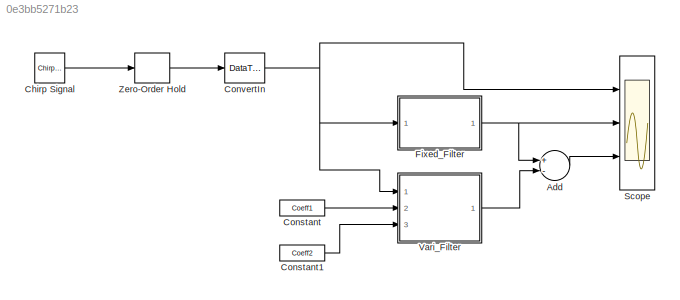
MODEL slx_0e3bb5271b23
KIND model
CONFIG AbsTol = auto
CONFIG FixedStep = auto
CONFIG MaxStep = auto
CONFIG MinStep = auto
CONFIG PreLoadFcn = Hd = sla_iir_sharing_fdesign\nCoeff1 = Hd.sosMatrix(1,:)\nCoeff2 = Hd.sosMatrix(2,:)\n
CONFIG RelTol = 1e-3
CONFIG SampleTimeConstraint = Unconstrained
CONFIG Solver = FixedStepDiscrete
CONFIG SolverMode = SingleTasking
CONFIG SolverName = FixedStepDiscrete
CONFIG StartTime = 0.0
CONFIG StopTime = 10.0
BLOCK [Sum] Add
  InputSameDT = off
  Inputs = +-
  OutDataTypeStr = Inherit: Inherit via internal rule
  Ports = [2, 1]
  SaturateOnIntegerOverflow = off
BLOCK [Reference] Chirp Signal  REF=simulink/Sources/Chirp Signal
  Ports = [0, 1]
  SourceBlock = simulink/Sources/Chirp Signal
  SourceType = chirp
BLOCK [Constant] Constant
  OutDataTypeStr = fixdt(1,16,14)
  SampleTime = -1
  Value = Coeff1
BLOCK [Constant] Constant1
  OutDataTypeStr = fixdt(1,16,14)
  SampleTime = -1
  Value = Coeff2
BLOCK [DataTypeConversion] ConvertIn
  OutDataTypeStr = fixdt(1,24,20)
  RndMeth = Nearest
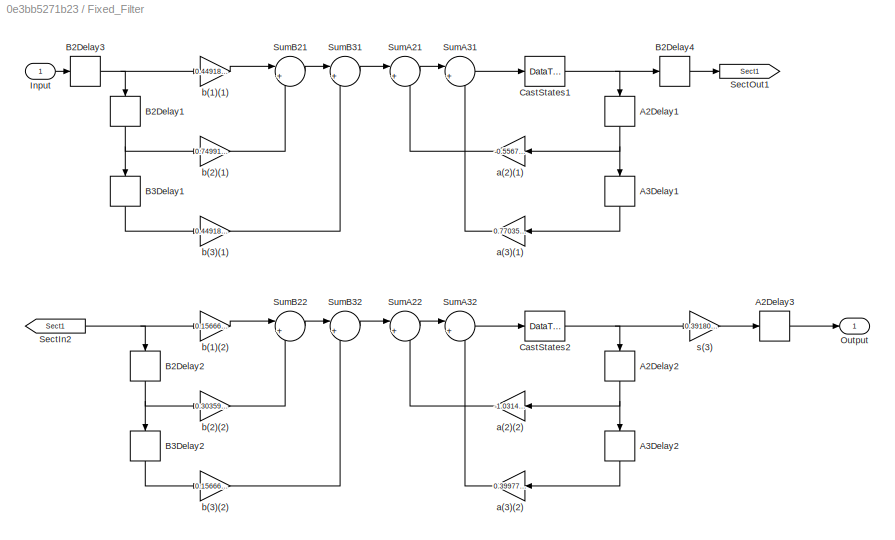
BLOCK [SubSystem] Fixed_Filter
  ErrorFcn = dspFilterRealizedInBasicElemsAlgLoopErrFcnCallback
  Ports = [1, 1]
  RequestExecContextInheritance = off
  Tag = FilterWizardSubSystem
  UserDataPersistent = on
  Variant = off
BLOCK [Delay] Fixed_Filter/A2Delay1
  DelayLength = 1
  InitialCondition = 0
  InputPortMap = u0
  Ports = [1, 1]
BLOCK [Delay] Fixed_Filter/A2Delay2
  DelayLength = 1
  InitialCondition = 0
  InputPortMap = u0
  Ports = [1, 1]
BLOCK [Delay] Fixed_Filter/A2Delay3
  DelayLength = 1
  InitialCondition = 0
  InputPortMap = u0
  Ports = [1, 1]
BLOCK [Delay] Fixed_Filter/A3Delay1
  DelayLength = 1
  InitialCondition = 0
  InputPortMap = u0
  Ports = [1, 1]
BLOCK [Delay] Fixed_Filter/A3Delay2
  DelayLength = 1
  InitialCondition = 0
  InputPortMap = u0
  Ports = [1, 1]
BLOCK [Delay] Fixed_Filter/B2Delay1
  DelayLength = 1
  InitialCondition = 0
  InputPortMap = u0
  Ports = [1, 1]
BLOCK [Delay] Fixed_Filter/B2Delay2
  DelayLength = 1
  InitialCondition = 0
  InputPortMap = u0
  Ports = [1, 1]
BLOCK [Delay] Fixed_Filter/B2Delay3
  DelayLength = 1
  InitialCondition = 0
  InputPortMap = u0
  Ports = [1, 1]
BLOCK [Delay] Fixed_Filter/B2Delay4
  DelayLength = 1
  InitialCondition = 0
  InputPortMap = u0
  Ports = [1, 1]
BLOCK [Delay] Fixed_Filter/B3Delay1
  DelayLength = 1
  InitialCondition = 0
  InputPortMap = u0
  Ports = [1, 1]
BLOCK [Delay] Fixed_Filter/B3Delay2
  DelayLength = 1
  InitialCondition = 0
  InputPortMap = u0
  Ports = [1, 1]
BLOCK [DataTypeConversion] Fixed_Filter/CastStates1
  OutDataTypeStr = fixdt(1,24,20)
  RndMeth = Convergent
  SaturateOnIntegerOverflow = off
BLOCK [DataTypeConversion] Fixed_Filter/CastStates2
  OutDataTypeStr = fixdt(1,24,20)
  RndMeth = Convergent
  SaturateOnIntegerOverflow = off
BLOCK [Inport] Fixed_Filter/Input
  IconDisplay = Port number
BLOCK [Outport] Fixed_Filter/Output
  IconDisplay = Port number
BLOCK [From] Fixed_Filter/SectIn2
  GotoTag = Sect1
BLOCK [Goto] Fixed_Filter/SectOut1
  GotoTag = Sect1
BLOCK [Sum] Fixed_Filter/SumA21
  AccumDataTypeStr = fixdt(1,40,34)
  IconShape = round
  InputSameDT = off
  Inputs = |+-
  OutDataTypeStr = fixdt(1,40,34)
  Ports = [2, 1]
  RndMeth = Convergent
  SaturateOnIntegerOverflow = off
BLOCK [Sum] Fixed_Filter/SumA22
  AccumDataTypeStr = fixdt(1,40,34)
  IconShape = round
  InputSameDT = off
  Inputs = |+-
  OutDataTypeStr = fixdt(1,40,34)
  Ports = [2, 1]
  RndMeth = Convergent
  SaturateOnIntegerOverflow = off
BLOCK [Sum] Fixed_Filter/SumA31
  AccumDataTypeStr = fixdt(1,40,34)
  IconShape = round
  InputSameDT = off
  Inputs = |+-
  OutDataTypeStr = fixdt(1,40,34)
  Ports = [2, 1]
  RndMeth = Convergent
  SaturateOnIntegerOverflow = off
BLOCK [Sum] Fixed_Filter/SumA32
  AccumDataTypeStr = fixdt(1,40,34)
  IconShape = round
  InputSameDT = off
  Inputs = |+-
  OutDataTypeStr = fixdt(1,40,34)
  Ports = [2, 1]
  RndMeth = Convergent
  SaturateOnIntegerOverflow = off
BLOCK [Sum] Fixed_Filter/SumB21
  AccumDataTypeStr = fixdt(1,40,35)
  IconShape = round
  InputSameDT = off
  Inputs = |++
  OutDataTypeStr = fixdt(1,40,35)
  Ports = [2, 1]
  RndMeth = Convergent
  SaturateOnIntegerOverflow = off
BLOCK [Sum] Fixed_Filter/SumB22
  AccumDataTypeStr = fixdt(1,40,35)
  IconShape = round
  InputSameDT = off
  Inputs = |++
  OutDataTypeStr = fixdt(1,40,35)
  Ports = [2, 1]
  RndMeth = Convergent
  SaturateOnIntegerOverflow = off
BLOCK [Sum] Fixed_Filter/SumB31
  AccumDataTypeStr = fixdt(1,40,35)
  IconShape = round
  InputSameDT = off
  Inputs = |++
  OutDataTypeStr = fixdt(1,40,35)
  Ports = [2, 1]
  RndMeth = Convergent
  SaturateOnIntegerOverflow = off
BLOCK [Sum] Fixed_Filter/SumB32
  AccumDataTypeStr = fixdt(1,40,35)
  IconShape = round
  InputSameDT = off
  Inputs = |++
  OutDataTypeStr = fixdt(1,40,35)
  Ports = [2, 1]
  RndMeth = Convergent
  SaturateOnIntegerOverflow = off
BLOCK [Gain] Fixed_Filter/a(2)(1)
  Gain = -0.55675755500760449
  OutDataTypeStr = fixdt(1,40,36)
  ParamDataTypeStr = fixdt(1,16,14)
  RndMeth = Nearest
  SaturateOnIntegerOverflow = off
BLOCK [Gain] Fixed_Filter/a(2)(2)
  Gain = -1.0314254280664468
  OutDataTypeStr = fixdt(1,40,36)
  ParamDataTypeStr = fixdt(1,16,14)
  RndMeth = Nearest
  SaturateOnIntegerOverflow = off
BLOCK [Gain] Fixed_Filter/a(3)(1)
  Gain = 0.77035837673636864
  OutDataTypeStr = fixdt(1,40,36)
  ParamDataTypeStr = fixdt(1,16,14)
  RndMeth = Nearest
  SaturateOnIntegerOverflow = off
BLOCK [Gain] Fixed_Filter/a(3)(2)
  Gain = 0.39977040417856735
  OutDataTypeStr = fixdt(1,40,36)
  ParamDataTypeStr = fixdt(1,16,14)
  RndMeth = Nearest
  SaturateOnIntegerOverflow = off
BLOCK [Gain] Fixed_Filter/b(1)(1)
  Gain = 0.44918421058976526
  OutDataTypeStr = fixdt(1,40,36)
  ParamDataTypeStr = fixdt(1,16,14)
  RndMeth = Nearest
  SaturateOnIntegerOverflow = off
BLOCK [Gain] Fixed_Filter/b(1)(2)
  Gain = 0.15666052151553389
  OutDataTypeStr = fixdt(1,40,36)
  ParamDataTypeStr = fixdt(1,16,14)
  RndMeth = Nearest
  SaturateOnIntegerOverflow = off
BLOCK [Gain] Fixed_Filter/b(2)(1)
  Gain = 0.74991329716402144
  OutDataTypeStr = fixdt(1,40,36)
  ParamDataTypeStr = fixdt(1,16,14)
  RndMeth = Nearest
  SaturateOnIntegerOverflow = off
BLOCK [Gain] Fixed_Filter/b(2)(2)
  Gain = 0.3035942618990965
  OutDataTypeStr = fixdt(1,40,36)
  ParamDataTypeStr = fixdt(1,16,14)
  RndMeth = Nearest
  SaturateOnIntegerOverflow = off
BLOCK [Gain] Fixed_Filter/b(3)(1)
  Gain = 0.44918421058976538
  OutDataTypeStr = fixdt(1,40,36)
  ParamDataTypeStr = fixdt(1,16,14)
  RndMeth = Nearest
  SaturateOnIntegerOverflow = off
BLOCK [Gain] Fixed_Filter/b(3)(2)
  Gain = 0.15666052151553386
  OutDataTypeStr = fixdt(1,40,36)
  ParamDataTypeStr = fixdt(1,16,14)
  RndMeth = Nearest
  SaturateOnIntegerOverflow = off
BLOCK [Gain] Fixed_Filter/s(3)
  Gain = 0.39180829500774744
  OutDataTypeStr = fixdt(1,18,12)
  ParamDataTypeStr = fixdt(1,16,14)
  RndMeth = Convergent
  SaturateOnIntegerOverflow = off
BLOCK [Scope] Scope
  NumInputPorts = 3
  Ports = [3]
  ScopeSpecificationString = Simulink.scopes.TimeScopeBlockCfg('CurrentConfiguration', extmgr.ConfigurationSet(extmgr.Configuration('Core','General UI',true),extmgr.Configuration('Core','Source UI',true),extmgr.Configuration('Sources','WiredSimulink',true,'DataLoggingSaveFormat','StructureWithTime','DataLoggingDecimation','1','DataLoggingDecimateData',true),extmgr.Configuration('Visuals','Time Domain',true,'SerializedDisplays...<+3034ch>
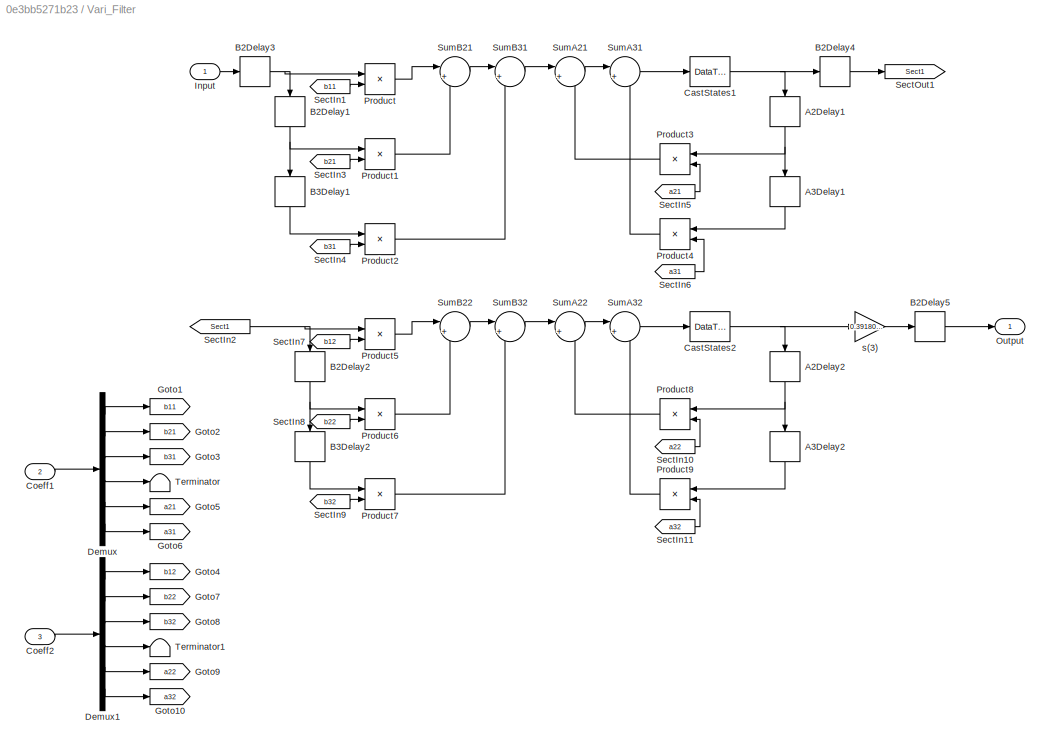
BLOCK [SubSystem] Vari_Filter
  ErrorFcn = dspFilterRealizedInBasicElemsAlgLoopErrFcnCallback
  Ports = [3, 1]
  RequestExecContextInheritance = off
  Tag = FilterWizardSubSystem
  UserDataPersistent = on
  Variant = off
BLOCK [Delay] Vari_Filter/A2Delay1
  DelayLength = 1
  InitialCondition = 0
  InputPortMap = u0
  Ports = [1, 1]
BLOCK [Delay] Vari_Filter/A2Delay2
  DelayLength = 1
  InitialCondition = 0
  InputPortMap = u0
  Ports = [1, 1]
BLOCK [Delay] Vari_Filter/A3Delay1
  DelayLength = 1
  InitialCondition = 0
  InputPortMap = u0
  Ports = [1, 1]
BLOCK [Delay] Vari_Filter/A3Delay2
  DelayLength = 1
  InitialCondition = 0
  InputPortMap = u0
  Ports = [1, 1]
BLOCK [Delay] Vari_Filter/B2Delay1
  DelayLength = 1
  InitialCondition = 0
  InputPortMap = u0
  Ports = [1, 1]
BLOCK [Delay] Vari_Filter/B2Delay2
  DelayLength = 1
  InitialCondition = 0
  InputPortMap = u0
  Ports = [1, 1]
BLOCK [Delay] Vari_Filter/B2Delay3
  DelayLength = 1
  InitialCondition = 0
  InputPortMap = u0
  Ports = [1, 1]
BLOCK [Delay] Vari_Filter/B2Delay4
  DelayLength = 1
  InitialCondition = 0
  InputPortMap = u0
  Ports = [1, 1]
BLOCK [Delay] Vari_Filter/B2Delay5
  DelayLength = 1
  InitialCondition = 0
  InputPortMap = u0
  Ports = [1, 1]
BLOCK [Delay] Vari_Filter/B3Delay1
  DelayLength = 1
  InitialCondition = 0
  InputPortMap = u0
  Ports = [1, 1]
BLOCK [Delay] Vari_Filter/B3Delay2
  DelayLength = 1
  InitialCondition = 0
  InputPortMap = u0
  Ports = [1, 1]
BLOCK [DataTypeConversion] Vari_Filter/CastStates1
  OutDataTypeStr = fixdt(1,24,20)
  RndMeth = Convergent
  SaturateOnIntegerOverflow = off
BLOCK [DataTypeConversion] Vari_Filter/CastStates2
  OutDataTypeStr = fixdt(1,24,20)
  RndMeth = Convergent
  SaturateOnIntegerOverflow = off
BLOCK [Inport] Vari_Filter/Coeff1
  IconDisplay = Port number
  Port = 2
BLOCK [Inport] Vari_Filter/Coeff2
  IconDisplay = Port number
  Port = 3
BLOCK [Demux] Vari_Filter/Demux
  DisplayOption = bar
  Outputs = 6
  Ports = [1, 6]
BLOCK [Demux] Vari_Filter/Demux1
  DisplayOption = bar
  Outputs = 6
  Ports = [1, 6]
BLOCK [Goto] Vari_Filter/Goto1
  GotoTag = b11
BLOCK [Goto] Vari_Filter/Goto10
  GotoTag = a32
BLOCK [Goto] Vari_Filter/Goto2
  GotoTag = b21
BLOCK [Goto] Vari_Filter/Goto3
  GotoTag = b31
BLOCK [Goto] Vari_Filter/Goto4
  GotoTag = b12
BLOCK [Goto] Vari_Filter/Goto5
  GotoTag = a21
BLOCK [Goto] Vari_Filter/Goto6
  GotoTag = a31
BLOCK [Goto] Vari_Filter/Goto7
  GotoTag = b22
BLOCK [Goto] Vari_Filter/Goto8
  GotoTag = b32
BLOCK [Goto] Vari_Filter/Goto9
  GotoTag = a22
BLOCK [Inport] Vari_Filter/Input
  IconDisplay = Port number
BLOCK [Outport] Vari_Filter/Output
  IconDisplay = Port number
BLOCK [Product] Vari_Filter/Product
  InputSameDT = off
  OutDataTypeStr = fixdt(1,40,36)
  Ports = [2, 1]
  RndMeth = Nearest
  SaturateOnIntegerOverflow = off
BLOCK [Product] Vari_Filter/Product1
  InputSameDT = off
  OutDataTypeStr = fixdt(1,40,36)
  Ports = [2, 1]
  RndMeth = Nearest
  SaturateOnIntegerOverflow = off
BLOCK [Product] Vari_Filter/Product2
  InputSameDT = off
  OutDataTypeStr = fixdt(1,40,36)
  Ports = [2, 1]
  RndMeth = Nearest
  SaturateOnIntegerOverflow = off
BLOCK [Product] Vari_Filter/Product3
  InputSameDT = off
  OutDataTypeStr = fixdt(1,40,36)
  Ports = [2, 1]
  RndMeth = Nearest
  SaturateOnIntegerOverflow = off
BLOCK [Product] Vari_Filter/Product4
  InputSameDT = off
  OutDataTypeStr = fixdt(1,40,36)
  Ports = [2, 1]
  RndMeth = Nearest
  SaturateOnIntegerOverflow = off
BLOCK [Product] Vari_Filter/Product5
  InputSameDT = off
  OutDataTypeStr = fixdt(1,40,36)
  Ports = [2, 1]
  RndMeth = Nearest
  SaturateOnIntegerOverflow = off
BLOCK [Product] Vari_Filter/Product6
  InputSameDT = off
  OutDataTypeStr = fixdt(1,40,36)
  Ports = [2, 1]
  RndMeth = Nearest
  SaturateOnIntegerOverflow = off
BLOCK [Product] Vari_Filter/Product7
  InputSameDT = off
  OutDataTypeStr = fixdt(1,40,36)
  Ports = [2, 1]
  RndMeth = Nearest
  SaturateOnIntegerOverflow = off
BLOCK [Product] Vari_Filter/Product8
  InputSameDT = off
  OutDataTypeStr = fixdt(1,40,36)
  Ports = [2, 1]
  RndMeth = Nearest
  SaturateOnIntegerOverflow = off
BLOCK [Product] Vari_Filter/Product9
  InputSameDT = off
  OutDataTypeStr = fixdt(1,40,36)
  Ports = [2, 1]
  RndMeth = Nearest
  SaturateOnIntegerOverflow = off
BLOCK [From] Vari_Filter/SectIn1
  GotoTag = b11
BLOCK [From] Vari_Filter/SectIn10
  GotoTag = a22
BLOCK [From] Vari_Filter/SectIn11
  GotoTag = a32
BLOCK [From] Vari_Filter/SectIn2
  GotoTag = Sect1
BLOCK [From] Vari_Filter/SectIn3
  GotoTag = b21
BLOCK [From] Vari_Filter/SectIn4
  GotoTag = b31
BLOCK [From] Vari_Filter/SectIn5
  GotoTag = a21
BLOCK [From] Vari_Filter/SectIn6
  GotoTag = a31
BLOCK [From] Vari_Filter/SectIn7
  GotoTag = b12
BLOCK [From] Vari_Filter/SectIn8
  GotoTag = b22
BLOCK [From] Vari_Filter/SectIn9
  GotoTag = b32
BLOCK [Goto] Vari_Filter/SectOut1
  GotoTag = Sect1
BLOCK [Sum] Vari_Filter/SumA21
  AccumDataTypeStr = fixdt(1,40,34)
  IconShape = round
  InputSameDT = off
  Inputs = |+-
  OutDataTypeStr = fixdt(1,40,34)
  Ports = [2, 1]
  RndMeth = Convergent
  SaturateOnIntegerOverflow = off
BLOCK [Sum] Vari_Filter/SumA22
  AccumDataTypeStr = fixdt(1,40,34)
  IconShape = round
  InputSameDT = off
  Inputs = |+-
  OutDataTypeStr = fixdt(1,40,34)
  Ports = [2, 1]
  RndMeth = Convergent
  SaturateOnIntegerOverflow = off
BLOCK [Sum] Vari_Filter/SumA31
  AccumDataTypeStr = fixdt(1,40,34)
  IconShape = round
  InputSameDT = off
  Inputs = |+-
  OutDataTypeStr = fixdt(1,40,34)
  Ports = [2, 1]
  RndMeth = Convergent
  SaturateOnIntegerOverflow = off
BLOCK [Sum] Vari_Filter/SumA32
  AccumDataTypeStr = fixdt(1,40,34)
  IconShape = round
  InputSameDT = off
  Inputs = |+-
  OutDataTypeStr = fixdt(1,40,34)
  Ports = [2, 1]
  RndMeth = Convergent
  SaturateOnIntegerOverflow = off
BLOCK [Sum] Vari_Filter/SumB21
  AccumDataTypeStr = fixdt(1,40,35)
  IconShape = round
  InputSameDT = off
  Inputs = |++
  OutDataTypeStr = fixdt(1,40,35)
  Ports = [2, 1]
  RndMeth = Convergent
  SaturateOnIntegerOverflow = off
BLOCK [Sum] Vari_Filter/SumB22
  AccumDataTypeStr = fixdt(1,40,35)
  IconShape = round
  InputSameDT = off
  Inputs = |++
  OutDataTypeStr = fixdt(1,40,35)
  Ports = [2, 1]
  RndMeth = Convergent
  SaturateOnIntegerOverflow = off
BLOCK [Sum] Vari_Filter/SumB31
  AccumDataTypeStr = fixdt(1,40,35)
  IconShape = round
  InputSameDT = off
  Inputs = |++
  OutDataTypeStr = fixdt(1,40,35)
  Ports = [2, 1]
  RndMeth = Convergent
  SaturateOnIntegerOverflow = off
BLOCK [Sum] Vari_Filter/SumB32
  AccumDataTypeStr = fixdt(1,40,35)
  IconShape = round
  InputSameDT = off
  Inputs = |++
  OutDataTypeStr = fixdt(1,40,35)
  Ports = [2, 1]
  RndMeth = Convergent
  SaturateOnIntegerOverflow = off
BLOCK [Terminator] Vari_Filter/Terminator
BLOCK [Terminator] Vari_Filter/Terminator1
BLOCK [Gain] Vari_Filter/s(3)
  Gain = 0.39180829500774744
  OutDataTypeStr = fixdt(1,18,12)
  ParamDataTypeStr = fixdt(1,16,14)
  RndMeth = Convergent
  SaturateOnIntegerOverflow = off
BLOCK [ZeroOrderHold] Zero-Order Hold
  SampleTime = 1/1000
LINE Add:1 -> Scope:3
LINE Chirp Signal:1 -> Zero-Order Hold:1
LINE Constant1:1 -> Vari_Filter:3
LINE Constant:1 -> Vari_Filter:2
NET ConvertIn:1 -> Fixed_Filter:1, Scope:1, Vari_Filter:1
NET Fixed_Filter/A2Delay1:1 -> Fixed_Filter/A3Delay1:1, Fixed_Filter/a(2)(1):1
NET Fixed_Filter/A2Delay2:1 -> Fixed_Filter/A3Delay2:1, Fixed_Filter/a(2)(2):1
LINE Fixed_Filter/A2Delay3:1 -> Fixed_Filter/Output:1
LINE Fixed_Filter/A3Delay1:1 -> Fixed_Filter/a(3)(1):1
LINE Fixed_Filter/A3Delay2:1 -> Fixed_Filter/a(3)(2):1
NET Fixed_Filter/B2Delay1:1 -> Fixed_Filter/B3Delay1:1, Fixed_Filter/b(2)(1):1
NET Fixed_Filter/B2Delay2:1 -> Fixed_Filter/B3Delay2:1, Fixed_Filter/b(2)(2):1
NET Fixed_Filter/B2Delay3:1 -> Fixed_Filter/B2Delay1:1, Fixed_Filter/b(1)(1):1
LINE Fixed_Filter/B2Delay4:1 -> Fixed_Filter/SectOut1:1
LINE Fixed_Filter/B3Delay1:1 -> Fixed_Filter/b(3)(1):1
LINE Fixed_Filter/B3Delay2:1 -> Fixed_Filter/b(3)(2):1
NET Fixed_Filter/CastStates1:1 -> Fixed_Filter/A2Delay1:1, Fixed_Filter/B2Delay4:1
NET Fixed_Filter/CastStates2:1 -> Fixed_Filter/A2Delay2:1, Fixed_Filter/s(3):1
LINE Fixed_Filter/Input:1 -> Fixed_Filter/B2Delay3:1
NET Fixed_Filter/SectIn2:1 -> Fixed_Filter/B2Delay2:1, Fixed_Filter/b(1)(2):1
LINE Fixed_Filter/SumA21:1 -> Fixed_Filter/SumA31:1
LINE Fixed_Filter/SumA22:1 -> Fixed_Filter/SumA32:1
LINE Fixed_Filter/SumA31:1 -> Fixed_Filter/CastStates1:1
LINE Fixed_Filter/SumA32:1 -> Fixed_Filter/CastStates2:1
LINE Fixed_Filter/SumB21:1 -> Fixed_Filter/SumB31:1
LINE Fixed_Filter/SumB22:1 -> Fixed_Filter/SumB32:1
LINE Fixed_Filter/SumB31:1 -> Fixed_Filter/SumA21:1
LINE Fixed_Filter/SumB32:1 -> Fixed_Filter/SumA22:1
LINE Fixed_Filter/a(2)(1):1 -> Fixed_Filter/SumA21:2
LINE Fixed_Filter/a(2)(2):1 -> Fixed_Filter/SumA22:2
LINE Fixed_Filter/a(3)(1):1 -> Fixed_Filter/SumA31:2
LINE Fixed_Filter/a(3)(2):1 -> Fixed_Filter/SumA32:2
LINE Fixed_Filter/b(1)(1):1 -> Fixed_Filter/SumB21:1
LINE Fixed_Filter/b(1)(2):1 -> Fixed_Filter/SumB22:1
LINE Fixed_Filter/b(2)(1):1 -> Fixed_Filter/SumB21:2
LINE Fixed_Filter/b(2)(2):1 -> Fixed_Filter/SumB22:2
LINE Fixed_Filter/b(3)(1):1 -> Fixed_Filter/SumB31:2
LINE Fixed_Filter/b(3)(2):1 -> Fixed_Filter/SumB32:2
LINE Fixed_Filter/s(3):1 -> Fixed_Filter/A2Delay3:1
NET Fixed_Filter:1 -> Add:1, Scope:2
NET Vari_Filter/A2Delay1:1 -> Vari_Filter/A3Delay1:1, Vari_Filter/Product3:1
NET Vari_Filter/A2Delay2:1 -> Vari_Filter/A3Delay2:1, Vari_Filter/Product8:1
LINE Vari_Filter/A3Delay1:1 -> Vari_Filter/Product4:1
LINE Vari_Filter/A3Delay2:1 -> Vari_Filter/Product9:1
NET Vari_Filter/B2Delay1:1 -> Vari_Filter/B3Delay1:1, Vari_Filter/Product1:1
NET Vari_Filter/B2Delay2:1 -> Vari_Filter/B3Delay2:1, Vari_Filter/Product6:1
NET Vari_Filter/B2Delay3:1 -> Vari_Filter/B2Delay1:1, Vari_Filter/Product:1
LINE Vari_Filter/B2Delay4:1 -> Vari_Filter/SectOut1:1
LINE Vari_Filter/B2Delay5:1 -> Vari_Filter/Output:1
LINE Vari_Filter/B3Delay1:1 -> Vari_Filter/Product2:1
LINE Vari_Filter/B3Delay2:1 -> Vari_Filter/Product7:1
NET Vari_Filter/CastStates1:1 -> Vari_Filter/A2Delay1:1, Vari_Filter/B2Delay4:1
NET Vari_Filter/CastStates2:1 -> Vari_Filter/A2Delay2:1, Vari_Filter/s(3):1
LINE Vari_Filter/Coeff1:1 -> Vari_Filter/Demux:1
LINE Vari_Filter/Coeff2:1 -> Vari_Filter/Demux1:1
LINE Vari_Filter/Demux1:1 -> Vari_Filter/Goto4:1
LINE Vari_Filter/Demux1:2 -> Vari_Filter/Goto7:1
LINE Vari_Filter/Demux1:3 -> Vari_Filter/Goto8:1
LINE Vari_Filter/Demux1:4 -> Vari_Filter/Terminator1:1
LINE Vari_Filter/Demux1:5 -> Vari_Filter/Goto9:1
LINE Vari_Filter/Demux1:6 -> Vari_Filter/Goto10:1
LINE Vari_Filter/Demux:1 -> Vari_Filter/Goto1:1
LINE Vari_Filter/Demux:2 -> Vari_Filter/Goto2:1
LINE Vari_Filter/Demux:3 -> Vari_Filter/Goto3:1
LINE Vari_Filter/Demux:4 -> Vari_Filter/Terminator:1
LINE Vari_Filter/Demux:5 -> Vari_Filter/Goto5:1
LINE Vari_Filter/Demux:6 -> Vari_Filter/Goto6:1
LINE Vari_Filter/Input:1 -> Vari_Filter/B2Delay3:1
LINE Vari_Filter/Product1:1 -> Vari_Filter/SumB21:2
LINE Vari_Filter/Product2:1 -> Vari_Filter/SumB31:2
LINE Vari_Filter/Product3:1 -> Vari_Filter/SumA21:2
LINE Vari_Filter/Product4:1 -> Vari_Filter/SumA31:2
LINE Vari_Filter/Product5:1 -> Vari_Filter/SumB22:1
LINE Vari_Filter/Product6:1 -> Vari_Filter/SumB22:2
LINE Vari_Filter/Product7:1 -> Vari_Filter/SumB32:2
LINE Vari_Filter/Product8:1 -> Vari_Filter/SumA22:2
LINE Vari_Filter/Product9:1 -> Vari_Filter/SumA32:2
LINE Vari_Filter/Product:1 -> Vari_Filter/SumB21:1
LINE Vari_Filter/SectIn10:1 -> Vari_Filter/Product8:2
LINE Vari_Filter/SectIn11:1 -> Vari_Filter/Product9:2
LINE Vari_Filter/SectIn1:1 -> Vari_Filter/Product:2
NET Vari_Filter/SectIn2:1 -> Vari_Filter/B2Delay2:1, Vari_Filter/Product5:1
LINE Vari_Filter/SectIn3:1 -> Vari_Filter/Product1:2
LINE Vari_Filter/SectIn4:1 -> Vari_Filter/Product2:2
LINE Vari_Filter/SectIn5:1 -> Vari_Filter/Product3:2
LINE Vari_Filter/SectIn6:1 -> Vari_Filter/Product4:2
LINE Vari_Filter/SectIn7:1 -> Vari_Filter/Product5:2
LINE Vari_Filter/SectIn8:1 -> Vari_Filter/Product6:2
LINE Vari_Filter/SectIn9:1 -> Vari_Filter/Product7:2
LINE Vari_Filter/SumA21:1 -> Vari_Filter/SumA31:1
LINE Vari_Filter/SumA22:1 -> Vari_Filter/SumA32:1
LINE Vari_Filter/SumA31:1 -> Vari_Filter/CastStates1:1
LINE Vari_Filter/SumA32:1 -> Vari_Filter/CastStates2:1
LINE Vari_Filter/SumB21:1 -> Vari_Filter/SumB31:1
LINE Vari_Filter/SumB22:1 -> Vari_Filter/SumB32:1
LINE Vari_Filter/SumB31:1 -> Vari_Filter/SumA21:1
LINE Vari_Filter/SumB32:1 -> Vari_Filter/SumA22:1
LINE Vari_Filter/s(3):1 -> Vari_Filter/B2Delay5:1
LINE Vari_Filter:1 -> Add:2
LINE Zero-Order Hold:1 -> ConvertIn:1
note: NET lines group one-source signal fan-out (src -> all destinations, sorted); 1:1 wires keep LINE
